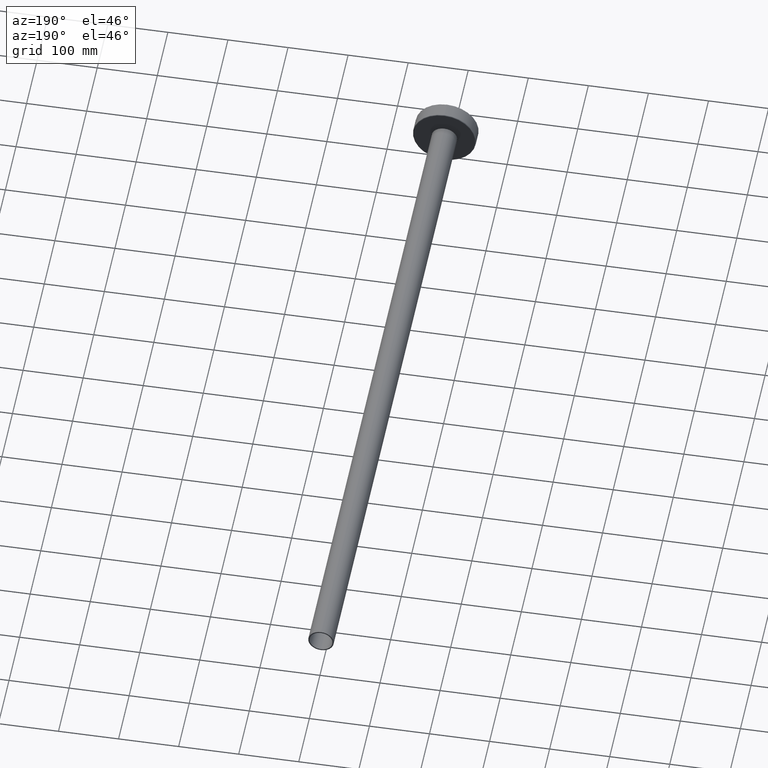
[diagram: clean part render]
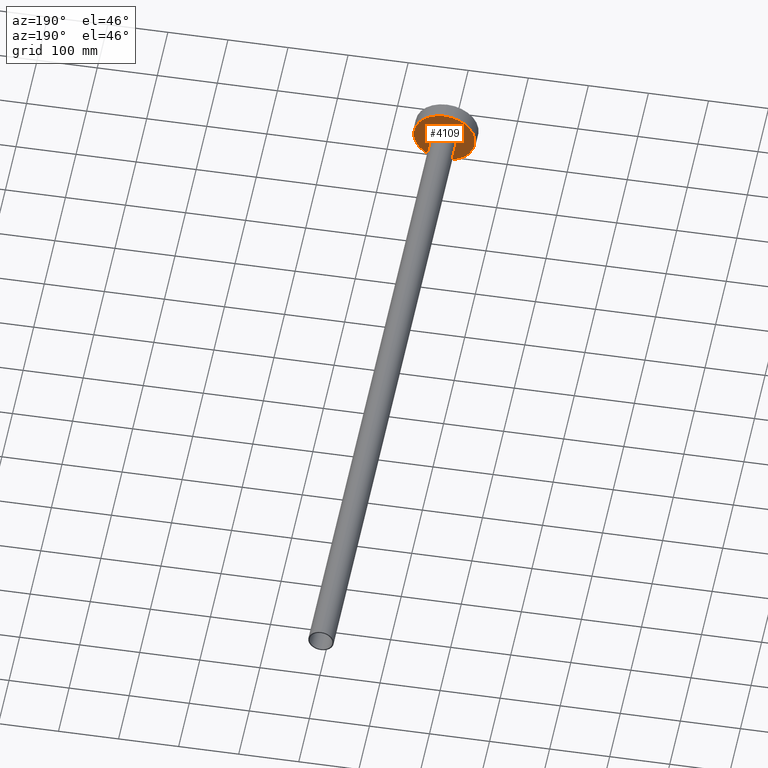
[diagram: same view with one face highlighted and labeled with its STEP entity id]
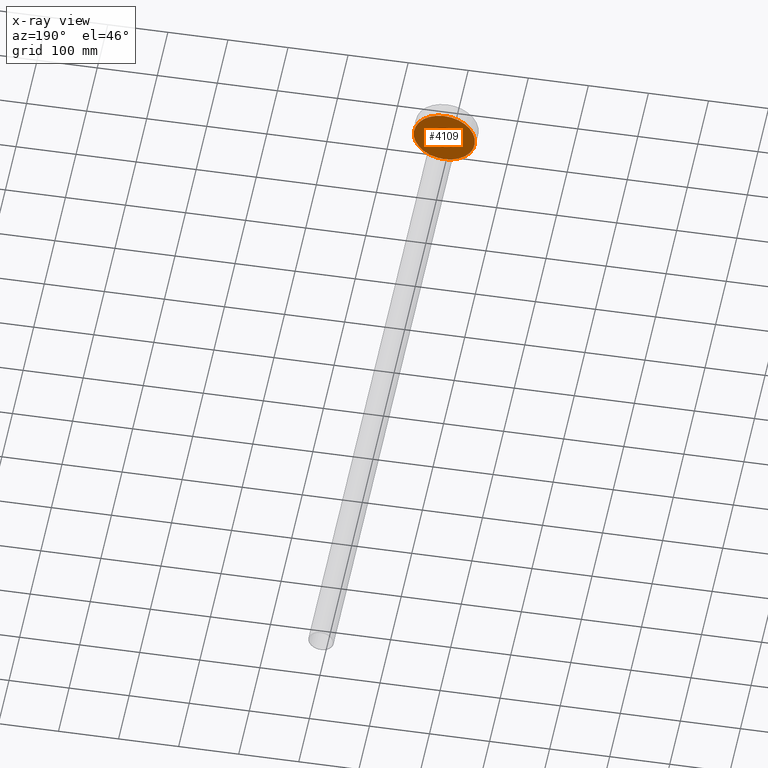
[diagram: x-ray of the same camera — body ghosted, the highlighted face saturated]
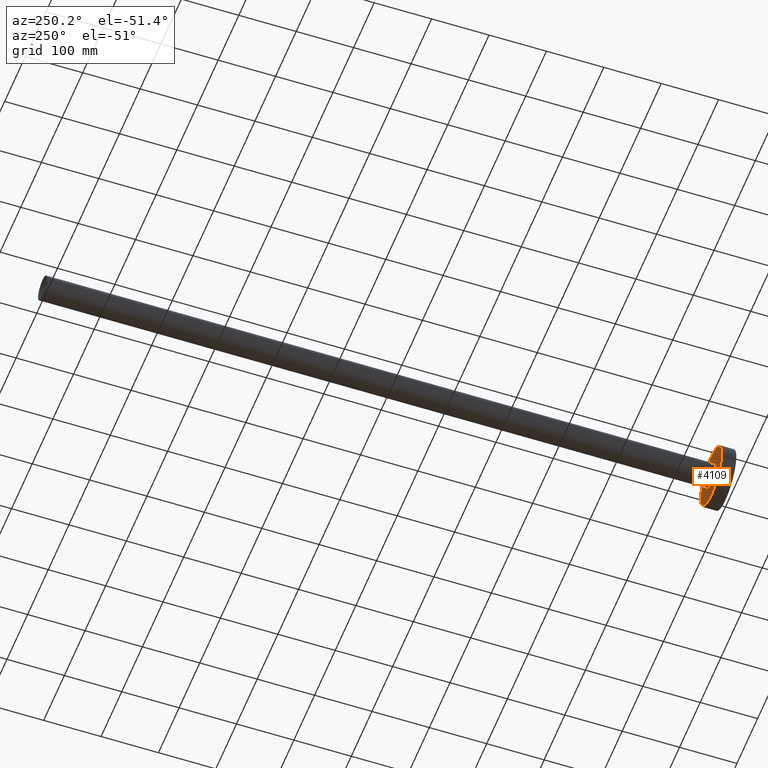
[diagram: same view with one face highlighted and labeled with its STEP entity id]
A machine part, auxiliary view. The second image highlights one B-rep face of the part: STEP entity #4109.
The next image is the same camera in x-ray: the body ghosted, the highlighted face saturated — about 0% of this face is hidden behind the body in this view.
A second angle (auxiliary view) of the same face is appended — the face is thin or edge-on in the first view.
In plain terms, the highlighted planar face has unit normal (0, -1, 0).
Its self-contained STEP definition (entity closure, byte-faithful):
#96 = EDGE_CURVE ( 'NONE', #8110, #888, #8376, .T. ) ;
#845 = DIRECTION ( 'NONE',  ( 0.0000000000000000000, 0.0000000000000000000, -1.000000000000000000 ) ) ;
#888 = VERTEX_POINT ( 'NONE', #2055 ) ;
#982 = EDGE_CURVE ( 'NONE', #13336, #11899, #2399, .T. ) ;
#1327 = ORIENTED_EDGE ( 'NONE', *, *, #982, .F. ) ;
#1788 = EDGE_LOOP ( 'NONE', ( #9137, #1327 ) ) ;
#2055 = CARTESIAN_POINT ( 'NONE',  ( 2.632990618166809200E-015, 24.99999999999999300, 21.50000000000000000 ) ) ;
#2297 = CARTESIAN_POINT ( 'NONE',  ( 0.0000000000000000000, 24.99999999999999300, 0.0000000000000000000 ) ) ;
#2399 = CIRCLE ( 'NONE', #6383, 51.00000000000000700 ) ;
#2653 = CARTESIAN_POINT ( 'NONE',  ( 0.0000000000000000000, 24.99999999999999300, 0.0000000000000000000 ) ) ;
#2771 = CARTESIAN_POINT ( 'NONE',  ( 0.0000000000000000000, 24.99999999999999300, -51.00000000000000700 ) ) ;
#2782 = FACE_OUTER_BOUND ( 'NONE', #1788, .T. ) ;
#2981 = ORIENTED_EDGE ( 'NONE', *, *, #96, .T. ) ;
#3123 = CIRCLE ( 'NONE', #13672, 21.50000000000000000 ) ;
#3418 = DIRECTION ( 'NONE',  ( -0.0000000000000000000, -1.000000000000000000, -0.0000000000000000000 ) ) ;
#3644 = CIRCLE ( 'NONE', #10904, 51.00000000000000700 ) ;
#4109 = ADVANCED_FACE ( 'NONE', ( #2782, #4723 ), #7333, .F. ) ;
#4495 = DIRECTION ( 'NONE',  ( -0.0000000000000000000, -1.000000000000000000, -0.0000000000000000000 ) ) ;
#4561 = EDGE_LOOP ( 'NONE', ( #2981, #14047 ) ) ;
#4723 = FACE_BOUND ( 'NONE', #4561, .T. ) ;
#4772 = AXIS2_PLACEMENT_3D ( 'NONE', #9539, #11955, #845 ) ;
#4791 = CARTESIAN_POINT ( 'NONE',  ( 0.0000000000000000000, 24.99999999999999300, 0.0000000000000000000 ) ) ;
#4982 = EDGE_CURVE ( 'NONE', #888, #8110, #3123, .T. ) ;
#5948 = DIRECTION ( 'NONE',  ( -0.0000000000000000000, -1.000000000000000000, -0.0000000000000000000 ) ) ;
#6383 = AXIS2_PLACEMENT_3D ( 'NONE', #14410, #4495, #13329 ) ;
#6474 = CARTESIAN_POINT ( 'NONE',  ( 0.0000000000000000000, 24.99999999999999300, -21.50000000000000000 ) ) ;
#6946 = AXIS2_PLACEMENT_3D ( 'NONE', #2653, #11426, #10297 ) ;
#7333 = PLANE ( 'NONE',  #4772 ) ;
#8110 = VERTEX_POINT ( 'NONE', #6474 ) ;
#8167 = EDGE_CURVE ( 'NONE', #11899, #13336, #3644, .T. ) ;
#8376 = CIRCLE ( 'NONE', #6946, 21.50000000000000000 ) ;
#8409 = CARTESIAN_POINT ( 'NONE',  ( 6.337547185587553400E-015, 24.99999999999999300, 51.00000000000000700 ) ) ;
#9137 = ORIENTED_EDGE ( 'NONE', *, *, #8167, .F. ) ;
#9539 = CARTESIAN_POINT ( 'NONE',  ( -51.00000000000000700, 24.99999999999999300, 0.0000000000000000000 ) ) ;
#10297 = DIRECTION ( 'NONE',  ( 0.0000000000000000000, 0.0000000000000000000, -1.000000000000000000 ) ) ;
#10379 = DIRECTION ( 'NONE',  ( 0.0000000000000000000, 0.0000000000000000000, -1.000000000000000000 ) ) ;
#10904 = AXIS2_PLACEMENT_3D ( 'NONE', #2297, #3418, #14406 ) ;
#11426 = DIRECTION ( 'NONE',  ( -0.0000000000000000000, -1.000000000000000000, -0.0000000000000000000 ) ) ;
#11899 = VERTEX_POINT ( 'NONE', #2771 ) ;
#11955 = DIRECTION ( 'NONE',  ( 0.0000000000000000000, -1.000000000000000000, -0.0000000000000000000 ) ) ;
#13329 = DIRECTION ( 'NONE',  ( 0.0000000000000000000, 0.0000000000000000000, -1.000000000000000000 ) ) ;
#13336 = VERTEX_POINT ( 'NONE', #8409 ) ;
#13672 = AXIS2_PLACEMENT_3D ( 'NONE', #4791, #5948, #10379 ) ;
#14047 = ORIENTED_EDGE ( 'NONE', *, *, #4982, .T. ) ;
#14406 = DIRECTION ( 'NONE',  ( 0.0000000000000000000, 0.0000000000000000000, -1.000000000000000000 ) ) ;
#14410 = CARTESIAN_POINT ( 'NONE',  ( 0.0000000000000000000, 24.99999999999999300, 0.0000000000000000000 ) ) ;